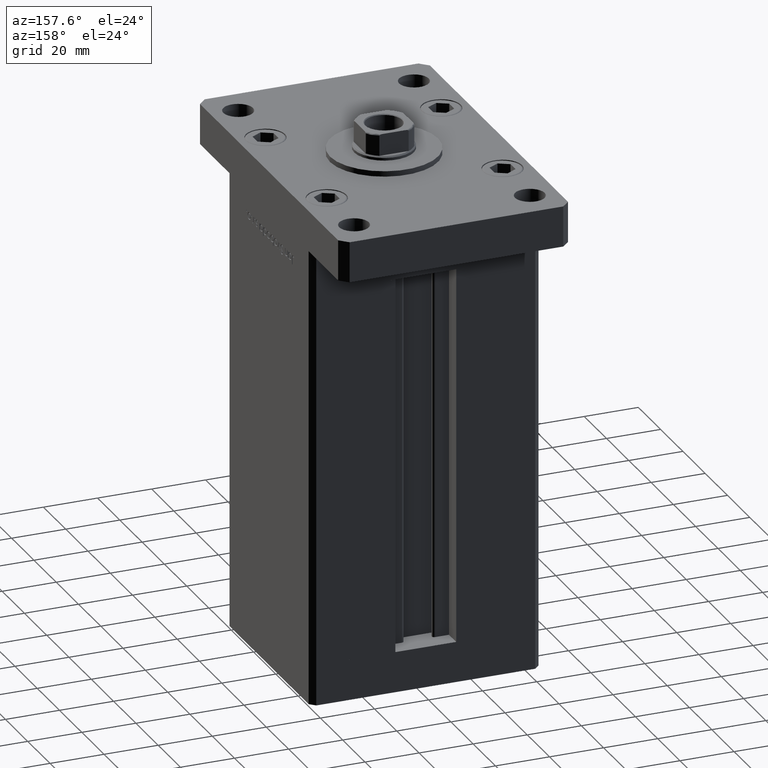
[diagram: clean part render]
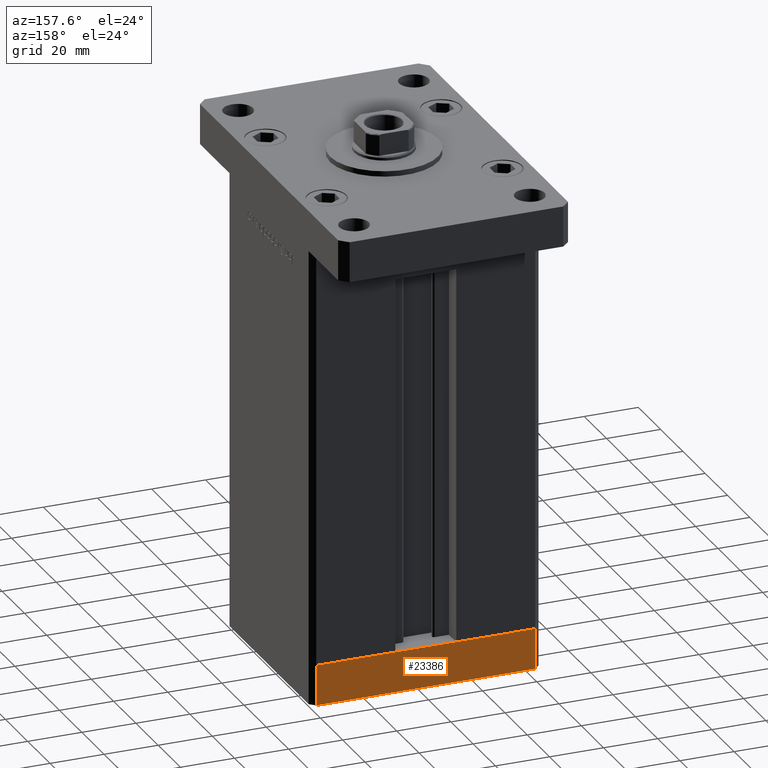
[diagram: same view with one face highlighted and labeled with its STEP entity id]
A machine part, auxiliary view. The second image highlights one B-rep face of the part: STEP entity #23386.
In plain terms, the highlighted planar face has unit normal (0, 1, 0).
Its self-contained STEP definition (entity closure, byte-faithful):
#4925 = VERTEX_POINT ( 'NONE', #34197 ) ;
#6568 = ORIENTED_EDGE ( 'NONE', *, *, #53119, .T. ) ;
#7472 = CARTESIAN_POINT ( 'NONE',  ( 40.49999999999991473, 37.50000000000000711, -15.00000000000000000 ) ) ;
#8165 = CARTESIAN_POINT ( 'NONE',  ( -40.50000000000000711, 37.49999999999997868, -15.00000000000000000 ) ) ;
#8756 = VERTEX_POINT ( 'NONE', #8165 ) ;
#9109 = CARTESIAN_POINT ( 'NONE',  ( -40.50000000000000711, 37.49999999999997868, 0.000000000000000000 ) ) ;
#12182 = AXIS2_PLACEMENT_3D ( 'NONE', #7472, #24040, #40573 ) ;
#13057 = EDGE_CURVE ( 'NONE', #4925, #29322, #22298, .T. ) ;
#13946 = LINE ( 'NONE', #41898, #39684 ) ;
#18870 = ORIENTED_EDGE ( 'NONE', *, *, #13057, .F. ) ;
#19281 = EDGE_CURVE ( 'NONE', #29322, #22563, #33372, .T. ) ;
#21835 = DIRECTION ( 'NONE',  ( -1.000000000000000000, -3.426614273534436165E-16, 0.000000000000000000 ) ) ;
#22298 = LINE ( 'NONE', #47790, #27503 ) ;
#22563 = VERTEX_POINT ( 'NONE', #9109 ) ;
#23386 = ADVANCED_FACE ( 'NONE', ( #48722 ), #28106, .T. ) ;
#24040 = DIRECTION ( 'NONE',  ( -3.426614273534436165E-16, 1.000000000000000000, 0.000000000000000000 ) ) ;
#25991 = ORIENTED_EDGE ( 'NONE', *, *, #19281, .F. ) ;
#27017 = LINE ( 'NONE', #40009, #29200 ) ;
#27503 = VECTOR ( 'NONE', #34779, 1000.000000000000000 ) ;
#28106 = PLANE ( 'NONE',  #12182 ) ;
#29200 = VECTOR ( 'NONE', #35948, 1000.000000000000000 ) ;
#29300 = CARTESIAN_POINT ( 'NONE',  ( 40.49999999999991473, 37.50000000000000711, 0.000000000000000000 ) ) ;
#29322 = VERTEX_POINT ( 'NONE', #46899 ) ;
#33372 = LINE ( 'NONE', #29300, #39797 ) ;
#34197 = CARTESIAN_POINT ( 'NONE',  ( 40.49999999999991473, 37.50000000000000711, -15.00000000000000000 ) ) ;
#34779 = DIRECTION ( 'NONE',  ( 0.000000000000000000, 0.000000000000000000, 1.000000000000000000 ) ) ;
#35948 = DIRECTION ( 'NONE',  ( 0.000000000000000000, 0.000000000000000000, 1.000000000000000000 ) ) ;
#39684 = VECTOR ( 'NONE', #21835, 1000.000000000000000 ) ;
#39797 = VECTOR ( 'NONE', #45846, 1000.000000000000000 ) ;
#40009 = CARTESIAN_POINT ( 'NONE',  ( -40.50000000000000711, 37.49999999999997868, -15.00000000000000000 ) ) ;
#40573 = DIRECTION ( 'NONE',  ( -1.000000000000000000, -3.426614273534436165E-16, 0.000000000000000000 ) ) ;
#41898 = CARTESIAN_POINT ( 'NONE',  ( 40.49999999999991473, 37.50000000000000711, -15.00000000000000000 ) ) ;
#42819 = ORIENTED_EDGE ( 'NONE', *, *, #49548, .T. ) ;
#45846 = DIRECTION ( 'NONE',  ( -1.000000000000000000, -3.426614273534436165E-16, 0.000000000000000000 ) ) ;
#46133 = EDGE_LOOP ( 'NONE', ( #25991, #18870, #6568, #42819 ) ) ;
#46899 = CARTESIAN_POINT ( 'NONE',  ( 40.49999999999991473, 37.50000000000000711, 0.000000000000000000 ) ) ;
#47790 = CARTESIAN_POINT ( 'NONE',  ( 40.49999999999991473, 37.50000000000000711, -15.00000000000000000 ) ) ;
#48722 = FACE_OUTER_BOUND ( 'NONE', #46133, .T. ) ;
#49548 = EDGE_CURVE ( 'NONE', #8756, #22563, #27017, .T. ) ;
#53119 = EDGE_CURVE ( 'NONE', #4925, #8756, #13946, .T. ) ;